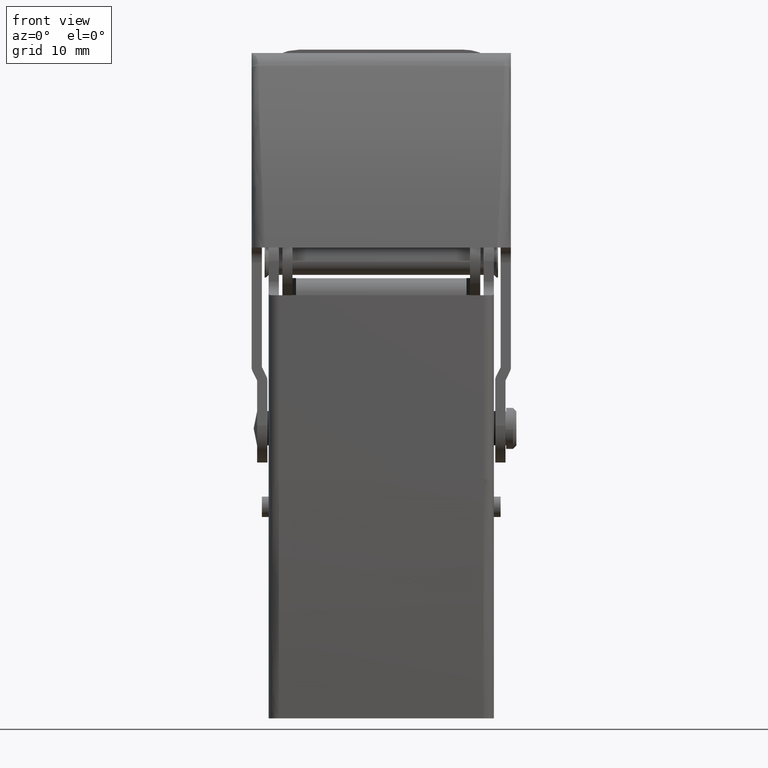
[diagram: clean part render]
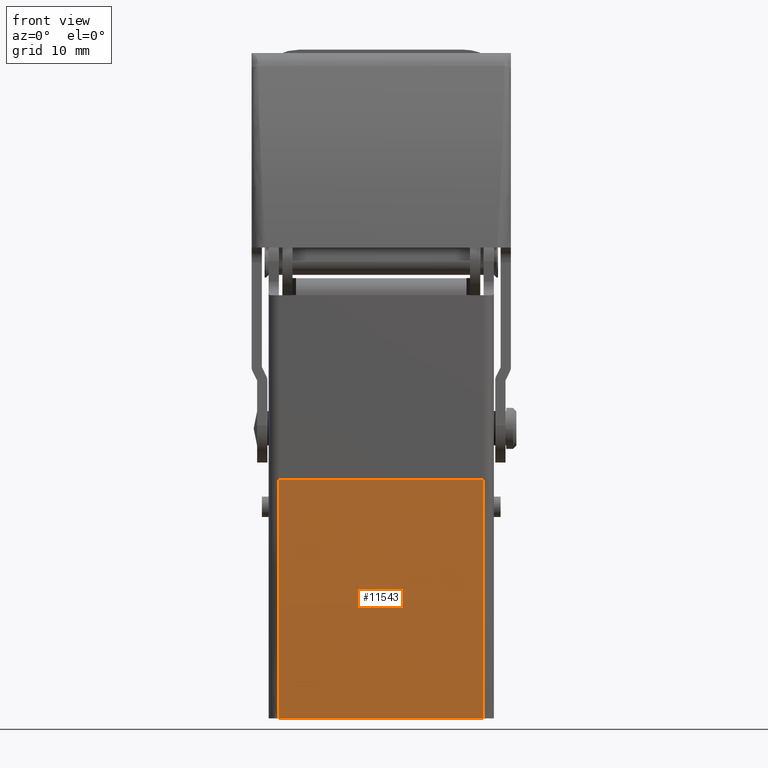
[diagram: same view with one face highlighted and labeled with its STEP entity id]
A machine part, front view. The second image highlights one B-rep face of the part: STEP entity #11543.
In plain terms, the highlighted face is a freeform B-spline surface patch.
Its self-contained STEP definition (entity closure, byte-faithful):
#9553=CARTESIAN_POINT('',(-15.000000000068200,-17.451338308760700,-47.999999999909598));
#9554=VERTEX_POINT('',#9553);
#9585=CARTESIAN_POINT('',(-15.000000000068200,-19.500000000000000,-12.999999999645100));
#9586=VERTEX_POINT('',#9585);
#9587=CARTESIAN_POINT('',(-15.000000000068200,-19.500000000000000,-12.999999999645100));
#9588=CARTESIAN_POINT('',(-15.000000000068203,-19.499999999999964,-30.559957352993219));
#9589=CARTESIAN_POINT('',(-15.000000000068200,-17.451338308760501,-47.999999999909583));
#9597=(BOUNDED_CURVE()B_SPLINE_CURVE(2,(#9587,#9588,#9589),.UNSPECIFIED.,.F.,.U.)CURVE()GEOMETRIC_REPRESENTATION_ITEM()QUASI_UNIFORM_CURVE()RATIONAL_B_SPLINE_CURVE((1.0,0.998291322133942,1.0))REPRESENTATION_ITEM(''));
#9598=EDGE_CURVE('',#9586,#9554,#9597,.T.);
#9714=CARTESIAN_POINT('',(14.999999999993120,-17.451338308760700,-47.999999999909598));
#9715=VERTEX_POINT('',#9714);
#9759=CARTESIAN_POINT('',(14.999999999993120,-19.500000000000000,-12.999999999645100));
#9760=VERTEX_POINT('',#9759);
#9774=CARTESIAN_POINT('',(14.999999999993120,-17.451338308760700,-47.999999999909598));
#9775=CARTESIAN_POINT('',(14.999999999993117,-19.499999999999961,-30.559957352993393));
#9776=CARTESIAN_POINT('',(14.999999999993120,-19.499999999999961,-12.999999999645000));
#9784=(BOUNDED_CURVE()B_SPLINE_CURVE(2,(#9774,#9775,#9776),.UNSPECIFIED.,.F.,.U.)CURVE()GEOMETRIC_REPRESENTATION_ITEM()QUASI_UNIFORM_CURVE()RATIONAL_B_SPLINE_CURVE((1.0,0.998291322133942,1.0))REPRESENTATION_ITEM(''));
#9785=EDGE_CURVE('',#9715,#9760,#9784,.T.);
#11502=CARTESIAN_POINT('',(14.999999999993120,-19.500000000000000,-12.999999999645100));
#11503=CARTESIAN_POINT('',(-15.000000000068200,-19.500000000000000,-12.999999999645100));
#11504=QUASI_UNIFORM_CURVE('',1,(#11502,#11503),.UNSPECIFIED.,.F.,.U.);
#11505=EDGE_CURVE('',#9760,#9586,#11504,.T.);
#11519=CARTESIAN_POINT('',(15.749999999994657,-19.494896888878831,-11.250188400970972));
#11520=CARTESIAN_POINT('',(-15.768750000069765,-19.494896888878831,-11.250188400970972));
#11521=CARTESIAN_POINT('',(15.749999999994655,-19.607571135254677,-30.567524592573704));
#11522=CARTESIAN_POINT('',(-15.768750000069765,-19.607571135254677,-30.567524592573704));
#11523=CARTESIAN_POINT('',(15.749999999994651,-17.241815295156588,-49.739779867586158));
#11524=CARTESIAN_POINT('',(-15.768750000069771,-17.241815295156588,-49.739779867586158));
#11532=(BOUNDED_SURFACE()B_SPLINE_SURFACE(1,2,((#11519,#11521,#11523),(#11520,#11522,#11524)),.UNSPECIFIED.,.F.,.F.,.U.)B_SPLINE_SURFACE_WITH_KNOTS((2,2),(3,3),(0.0,31.518750000064419),(7.695766426086426,46.296489738464352),.UNSPECIFIED.)GEOMETRIC_REPRESENTATION_ITEM()RATIONAL_B_SPLINE_SURFACE(((0.998712008813702,0.995893091012268,0.997199803271407),(0.998712008813702,0.995893091012268,0.997199803271407)))REPRESENTATION_ITEM('')SURFACE());
#11533=CARTESIAN_POINT('',(14.999999999993120,-17.451338308760700,-47.999999999909598));
#11534=CARTESIAN_POINT('',(-15.000000000068200,-17.451338308760700,-47.999999999909598));
#11535=QUASI_UNIFORM_CURVE('',1,(#11533,#11534),.UNSPECIFIED.,.F.,.U.);
#11536=EDGE_CURVE('',#9715,#9554,#11535,.T.);
#11537=ORIENTED_EDGE('',*,*,#11536,.F.);
#11538=ORIENTED_EDGE('',*,*,#9785,.T.);
#11539=ORIENTED_EDGE('',*,*,#11505,.T.);
#11540=ORIENTED_EDGE('',*,*,#9598,.T.);
#11541=EDGE_LOOP('',(#11537,#11538,#11539,#11540));
#11542=FACE_OUTER_BOUND('',#11541,.T.);
#11543=ADVANCED_FACE('',(#11542),#11532,.T.);